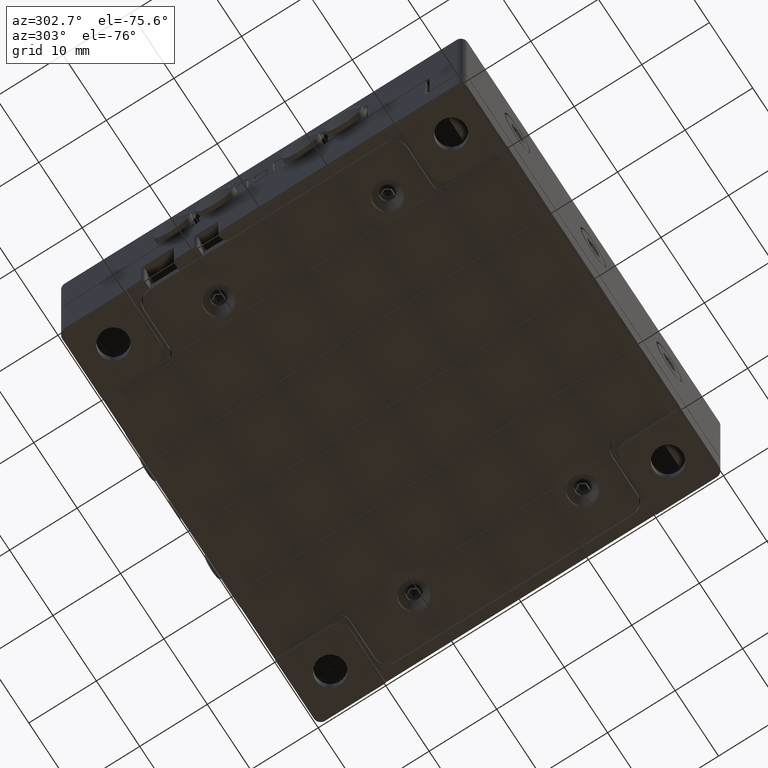
[diagram: clean part render]
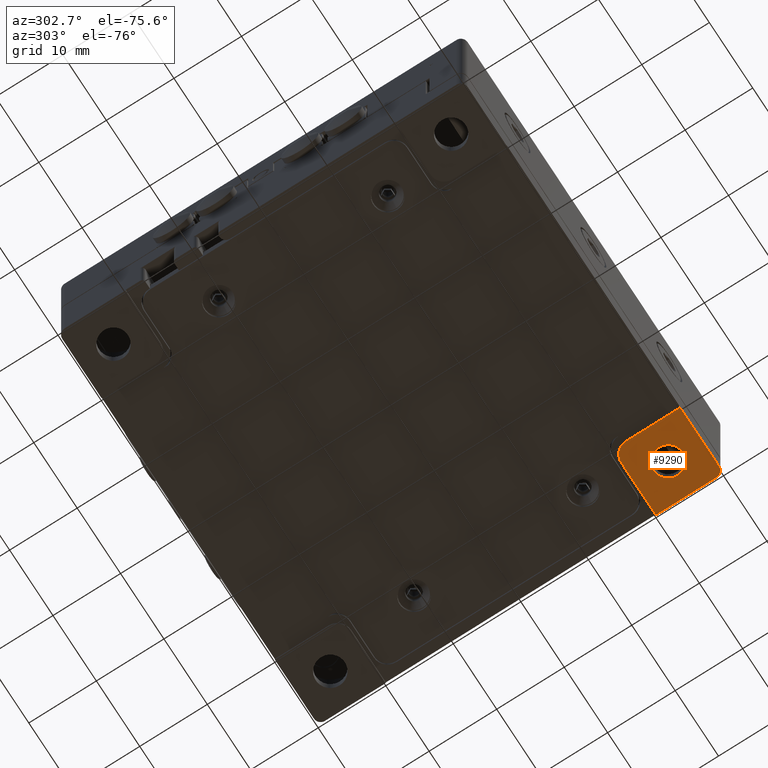
[diagram: same view with one face highlighted and labeled with its STEP entity id]
A machine part, auxiliary view. The second image highlights one B-rep face of the part: STEP entity #9290.
In plain terms, the highlighted planar face has unit normal (0, 0, -1).
Its self-contained STEP definition (entity closure, byte-faithful):
#2387 = ORIENTED_EDGE ( 'NONE', *, *, #66603, .T. ) ;
#2520 = CIRCLE ( 'NONE', #27551, 1.000000000000000888 ) ;
#2657 = FACE_OUTER_BOUND ( 'NONE', #18130, .T. ) ;
#2709 = LINE ( 'NONE', #53695, #24123 ) ;
#4267 = CARTESIAN_POINT ( 'NONE',  ( 20.00000000000000355, -30.00000000000000000, -11.40000000000000036 ) ) ;
#4907 = CARTESIAN_POINT ( 'NONE',  ( 30.00000000000000000, -29.00000000000000000, -11.40000000000000036 ) ) ;
#9290 = ADVANCED_FACE ( 'NONE', ( #69307, #2657 ), #23724, .T. ) ;
#9438 = ORIENTED_EDGE ( 'NONE', *, *, #15788, .F. ) ;
#10684 = DIRECTION ( 'NONE',  ( 0.000000000000000000, 0.000000000000000000, 1.000000000000000000 ) ) ;
#11281 = EDGE_CURVE ( 'NONE', #74218, #35405, #2520, .T. ) ;
#14145 = CARTESIAN_POINT ( 'NONE',  ( 28.99999999999999645, -30.00000000000000000, -11.40000000000000036 ) ) ;
#15049 = CARTESIAN_POINT ( 'NONE',  ( 30.00000000000000000, 0.000000000000000000, -11.40000000000000036 ) ) ;
#15788 = EDGE_CURVE ( 'NONE', #35405, #84961, #81702, .T. ) ;
#16593 = ORIENTED_EDGE ( 'NONE', *, *, #44584, .T. ) ;
#17920 = DIRECTION ( 'NONE',  ( -0.000000000000000000, 1.000000000000000000, 0.000000000000000000 ) ) ;
#18130 = EDGE_LOOP ( 'NONE', ( #2387, #83605, #16593, #9438, #69773, #36775 ) ) ;
#18415 = CARTESIAN_POINT ( 'NONE',  ( 20.00000000000000000, -22.00000000000000000, -11.40000000000000036 ) ) ;
#18775 = AXIS2_PLACEMENT_3D ( 'NONE', #24882, #10684, #54797 ) ;
#22914 = DIRECTION ( 'NONE',  ( -1.000000000000000000, 0.000000000000000000, 0.000000000000000000 ) ) ;
#23724 = PLANE ( 'NONE',  #77143 ) ;
#24123 = VECTOR ( 'NONE', #17920, 1000.000000000000000 ) ;
#24322 = DIRECTION ( 'NONE',  ( 1.000000000000000000, 0.000000000000000000, 0.000000000000000000 ) ) ;
#24882 = CARTESIAN_POINT ( 'NONE',  ( 25.00000000000000000, -25.00000000000000000, -11.40000000000000036 ) ) ;
#27551 = AXIS2_PLACEMENT_3D ( 'NONE', #32164, #62075, #22914 ) ;
#28284 = VECTOR ( 'NONE', #71717, 1000.000000000000000 ) ;
#31651 = LINE ( 'NONE', #61569, #72677 ) ;
#32164 = CARTESIAN_POINT ( 'NONE',  ( 29.00000000000000000, -29.00000000000000000, -11.40000000000000036 ) ) ;
#33986 = LINE ( 'NONE', #94266, #28284 ) ;
#35215 = DIRECTION ( 'NONE',  ( -0.000000000000000000, -0.000000000000000000, 1.000000000000000000 ) ) ;
#35405 = VERTEX_POINT ( 'NONE', #4907 ) ;
#36775 = ORIENTED_EDGE ( 'NONE', *, *, #69548, .F. ) ;
#39503 = EDGE_CURVE ( 'NONE', #62484, #62484, #50009, .T. ) ;
#44584 = EDGE_CURVE ( 'NONE', #49133, #84961, #33986, .T. ) ;
#47252 = CARTESIAN_POINT ( 'NONE',  ( -30.00000000000000000, -30.00000000000000000, -11.40000000000000036 ) ) ;
#49133 = VERTEX_POINT ( 'NONE', #75710 ) ;
#50009 = CIRCLE ( 'NONE', #18775, 2.149999999999999023 ) ;
#50505 = EDGE_LOOP ( 'NONE', ( #95739 ) ) ;
#52938 = CIRCLE ( 'NONE', #62305, 2.000000000000001776 ) ;
#53695 = CARTESIAN_POINT ( 'NONE',  ( 20.00000000000000000, -20.00000000000000000, -11.40000000000000036 ) ) ;
#54797 = DIRECTION ( 'NONE',  ( 1.000000000000000000, 0.000000000000000000, 0.000000000000000000 ) ) ;
#61569 = CARTESIAN_POINT ( 'NONE',  ( -30.00000000000000000, -30.00000000000000000, -11.40000000000000036 ) ) ;
#62075 = DIRECTION ( 'NONE',  ( -0.000000000000000000, -0.000000000000000000, 1.000000000000000000 ) ) ;
#62305 = AXIS2_PLACEMENT_3D ( 'NONE', #65617, #35215, #95026 ) ;
#62484 = VERTEX_POINT ( 'NONE', #84561 ) ;
#65544 = DIRECTION ( 'NONE',  ( -0.000000000000000000, 1.000000000000000000, 0.000000000000000000 ) ) ;
#65617 = CARTESIAN_POINT ( 'NONE',  ( 22.00000000000000000, -22.00000000000000000, -11.40000000000000036 ) ) ;
#66603 = EDGE_CURVE ( 'NONE', #83199, #84943, #2709, .T. ) ;
#69307 = FACE_BOUND ( 'NONE', #50505, .T. ) ;
#69548 = EDGE_CURVE ( 'NONE', #83199, #74218, #31651, .T. ) ;
#69773 = ORIENTED_EDGE ( 'NONE', *, *, #11281, .F. ) ;
#69810 = DIRECTION ( 'NONE',  ( -1.000000000000000000, 0.000000000000000000, -0.000000000000000000 ) ) ;
#71717 = DIRECTION ( 'NONE',  ( 1.000000000000000000, 0.000000000000000000, 0.000000000000000000 ) ) ;
#72677 = VECTOR ( 'NONE', #24322, 1000.000000000000000 ) ;
#74218 = VERTEX_POINT ( 'NONE', #14145 ) ;
#75710 = CARTESIAN_POINT ( 'NONE',  ( 22.00000000000000000, -19.99999999999999645, -11.40000000000000036 ) ) ;
#77143 = AXIS2_PLACEMENT_3D ( 'NONE', #47252, #82601, #69810 ) ;
#80437 = VECTOR ( 'NONE', #65544, 1000.000000000000000 ) ;
#81702 = LINE ( 'NONE', #15049, #80437 ) ;
#82601 = DIRECTION ( 'NONE',  ( 0.000000000000000000, 0.000000000000000000, -1.000000000000000000 ) ) ;
#82980 = EDGE_CURVE ( 'NONE', #49133, #84943, #52938, .T. ) ;
#83199 = VERTEX_POINT ( 'NONE', #4267 ) ;
#83605 = ORIENTED_EDGE ( 'NONE', *, *, #82980, .F. ) ;
#84561 = CARTESIAN_POINT ( 'NONE',  ( 27.15000000000000213, -25.00000000000000000, -11.40000000000000036 ) ) ;
#84943 = VERTEX_POINT ( 'NONE', #18415 ) ;
#84961 = VERTEX_POINT ( 'NONE', #86041 ) ;
#86041 = CARTESIAN_POINT ( 'NONE',  ( 30.00000000000000000, -20.00000000000000000, -11.40000000000000036 ) ) ;
#94266 = CARTESIAN_POINT ( 'NONE',  ( 30.00000000000000000, -20.00000000000000000, -11.40000000000000036 ) ) ;
#95026 = DIRECTION ( 'NONE',  ( -1.000000000000000000, 0.000000000000000000, 0.000000000000000000 ) ) ;
#95739 = ORIENTED_EDGE ( 'NONE', *, *, #39503, .T. ) ;